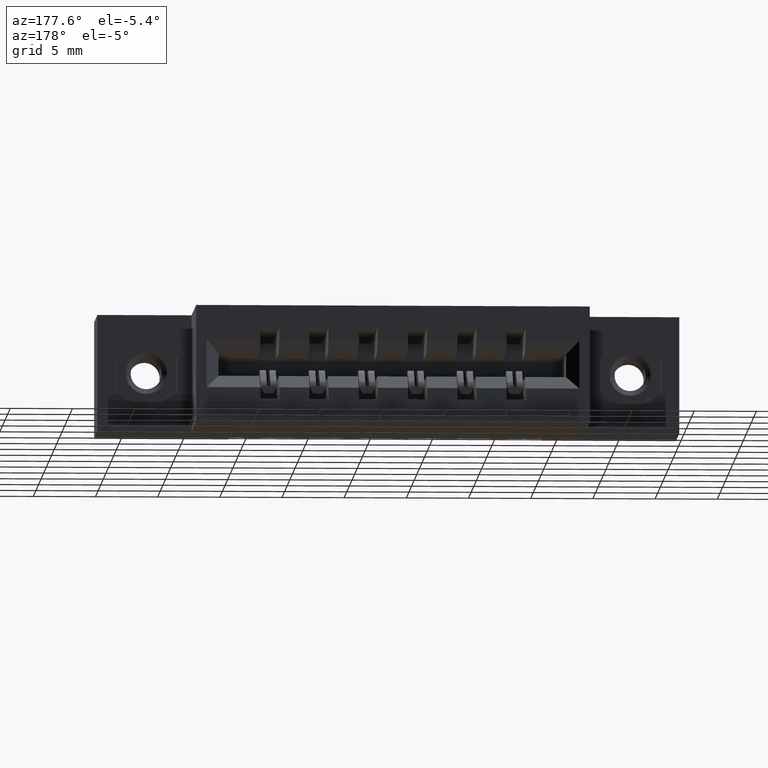
[diagram: clean part render]
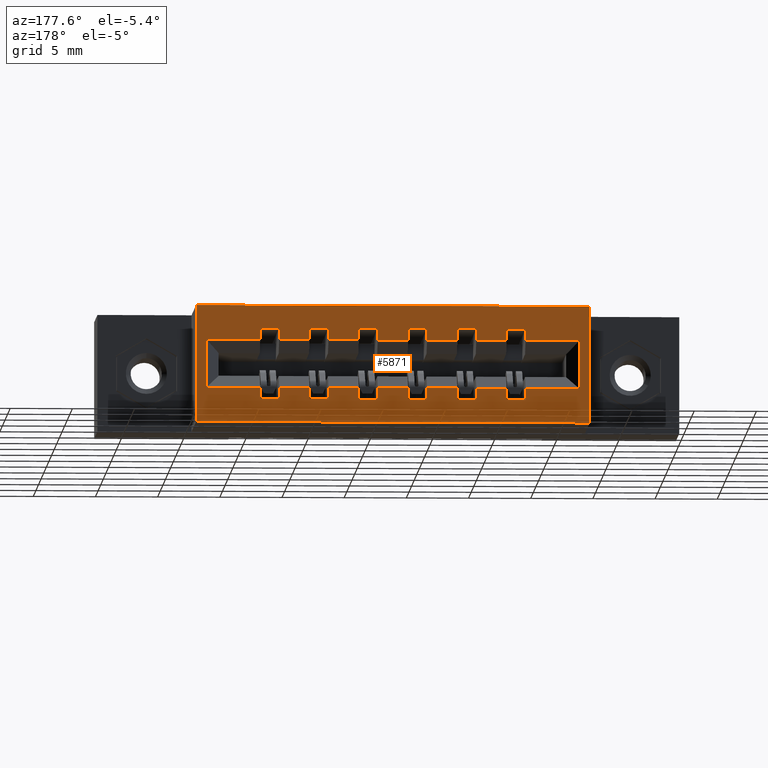
[diagram: same view with one face highlighted and labeled with its STEP entity id]
A machine part, auxiliary view. The second image highlights one B-rep face of the part: STEP entity #5871.
In plain terms, the highlighted planar face has unit normal (0, -1, 0).
Its self-contained STEP definition (entity closure, byte-faithful):
#14 = CARTESIAN_POINT ( 'NONE',  ( 1.340999999999999700, 0.5999999999999999800, -0.1090000000000002200 ) ) ;
#71 = VECTOR ( 'NONE', #1146, 39.37007874015748100 ) ;
#122 = CARTESIAN_POINT ( 'NONE',  ( 1.184999999999999800, 0.5999999999999999800, -0.2610000000000000100 ) ) ;
#189 = VERTEX_POINT ( 'NONE', #6931 ) ;
#201 = LINE ( 'NONE', #5653, #5351 ) ;
#210 = CARTESIAN_POINT ( 'NONE',  ( 0.6570000000000000300, 0.5999999999999999800, -0.2610000000000000100 ) ) ;
#220 = DIRECTION ( 'NONE',  ( 1.000000000000000000, -0.0000000000000000000, -0.0000000000000000000 ) ) ;
#274 = EDGE_CURVE ( 'NONE', #6883, #5917, #1651, .T. ) ;
#275 = LINE ( 'NONE', #2967, #1007 ) ;
#353 = CARTESIAN_POINT ( 'NONE',  ( 0.5010000000000001100, 0.5999999999999999800, -0.2974999999999999900 ) ) ;
#374 = CARTESIAN_POINT ( 'NONE',  ( 0.5010000000000001100, 0.5999999999999999800, -0.1090000000000001900 ) ) ;
#381 = ORIENTED_EDGE ( 'NONE', *, *, #2538, .T. ) ;
#384 = ORIENTED_EDGE ( 'NONE', *, *, #8340, .T. ) ;
#408 = LINE ( 'NONE', #3620, #6888 ) ;
#411 = ORIENTED_EDGE ( 'NONE', *, *, #9014, .F. ) ;
#483 = LINE ( 'NONE', #1380, #8507 ) ;
#497 = CARTESIAN_POINT ( 'NONE',  ( 0.8129999999999999400, 0.5999999999999999800, -0.2610000000000000100 ) ) ;
#526 = VECTOR ( 'NONE', #4606, 39.37007874015748100 ) ;
#551 = VERTEX_POINT ( 'NONE', #1178 ) ;
#593 = CARTESIAN_POINT ( 'NONE',  ( 0.9689999999999998600, 0.5999999999999999800, -0.2974999999999999900 ) ) ;
#616 = CARTESIAN_POINT ( 'NONE',  ( 0.9689999999999998600, 0.5999999999999999800, -0.2974999999999999900 ) ) ;
#651 = DIRECTION ( 'NONE',  ( 0.0000000000000000000, 0.0000000000000000000, 1.000000000000000000 ) ) ;
#680 = DIRECTION ( 'NONE',  ( 1.000000000000000000, -0.0000000000000000000, -0.0000000000000000000 ) ) ;
#717 = CARTESIAN_POINT ( 'NONE',  ( 0.5610000000000000500, 0.5999999999999999800, -0.2974999999999999900 ) ) ;
#769 = EDGE_CURVE ( 'NONE', #2904, #2438, #8815, .T. ) ;
#780 = ORIENTED_EDGE ( 'NONE', *, *, #836, .F. ) ;
#782 = CARTESIAN_POINT ( 'NONE',  ( 0.5010000000000001100, 0.5999999999999999800, -0.2974999999999999900 ) ) ;
#799 = ORIENTED_EDGE ( 'NONE', *, *, #274, .F. ) ;
#836 = EDGE_CURVE ( 'NONE', #5061, #8609, #6151, .T. ) ;
#839 = VECTOR ( 'NONE', #680, 39.37007874015748100 ) ;
#873 = DIRECTION ( 'NONE',  ( 0.0000000000000000000, 0.0000000000000000000, 1.000000000000000000 ) ) ;
#878 = VECTOR ( 'NONE', #7741, 39.37007874015748100 ) ;
#920 = CARTESIAN_POINT ( 'NONE',  ( 0.5610000000000000500, 0.5999999999999999800, -0.2610000000000000100 ) ) ;
#929 = LINE ( 'NONE', #3494, #71 ) ;
#934 = CARTESIAN_POINT ( 'NONE',  ( 1.280999999999999700, 0.5999999999999999800, -0.2974999999999999300 ) ) ;
#952 = AXIS2_PLACEMENT_3D ( 'NONE', #3796, #9204, #1485 ) ;
#979 = VERTEX_POINT ( 'NONE', #920 ) ;
#980 = LINE ( 'NONE', #6339, #1101 ) ;
#997 = CARTESIAN_POINT ( 'NONE',  ( 1.184999999999999800, 0.5999999999999999800, -0.07249999999999996700 ) ) ;
#1007 = VECTOR ( 'NONE', #5310, 39.37007874015748100 ) ;
#1052 = VECTOR ( 'NONE', #7113, 39.37007874015748100 ) ;
#1056 = LINE ( 'NONE', #3414, #6810 ) ;
#1073 = DIRECTION ( 'NONE',  ( 0.0000000000000000000, 0.0000000000000000000, 1.000000000000000000 ) ) ;
#1074 = DIRECTION ( 'NONE',  ( 1.000000000000000000, -0.0000000000000000000, -0.0000000000000000000 ) ) ;
#1081 = VERTEX_POINT ( 'NONE', #8793 ) ;
#1087 = DIRECTION ( 'NONE',  ( 0.0000000000000000000, 0.0000000000000000000, 1.000000000000000000 ) ) ;
#1101 = VECTOR ( 'NONE', #8889, 39.37007874015748100 ) ;
#1103 = DIRECTION ( 'NONE',  ( 1.000000000000000000, -0.0000000000000000000, -0.0000000000000000000 ) ) ;
#1112 = VECTOR ( 'NONE', #6038, 39.37007874015748100 ) ;
#1146 = DIRECTION ( 'NONE',  ( 0.0000000000000000000, 0.0000000000000000000, -1.000000000000000000 ) ) ;
#1171 = ORIENTED_EDGE ( 'NONE', *, *, #8620, .T. ) ;
#1175 = EDGE_CURVE ( 'NONE', #10126, #189, #7831, .T. ) ;
#1178 = CARTESIAN_POINT ( 'NONE',  ( 1.340999999999999700, 0.5999999999999999800, -0.2609999999999999500 ) ) ;
#1252 = EDGE_CURVE ( 'NONE', #3669, #9787, #1371, .T. ) ;
#1269 = FACE_OUTER_BOUND ( 'NONE', #2659, .T. ) ;
#1301 = CARTESIAN_POINT ( 'NONE',  ( 0.0000000000000000000, 0.5999999999999999800, -0.1090000000000002200 ) ) ;
#1339 = CARTESIAN_POINT ( 'NONE',  ( 0.7170000000000000800, 0.5999999999999999800, -0.07250000000000000900 ) ) ;
#1350 = CARTESIAN_POINT ( 'NONE',  ( 0.8129999999999999400, 0.5999999999999999800, -0.2974999999999999900 ) ) ;
#1360 = ORIENTED_EDGE ( 'NONE', *, *, #1373, .T. ) ;
#1371 = LINE ( 'NONE', #6701, #7364 ) ;
#1373 = EDGE_CURVE ( 'NONE', #8005, #9434, #6769, .T. ) ;
#1380 = CARTESIAN_POINT ( 'NONE',  ( 0.0000000000000000000, 0.5999999999999999800, -0.2609999999999999500 ) ) ;
#1412 = DIRECTION ( 'NONE',  ( 1.000000000000000000, -0.0000000000000000000, -0.0000000000000000000 ) ) ;
#1420 = VECTOR ( 'NONE', #4948, 39.37007874015748100 ) ;
#1439 = LINE ( 'NONE', #934, #8368 ) ;
#1455 = VERTEX_POINT ( 'NONE', #10064 ) ;
#1457 = CARTESIAN_POINT ( 'NONE',  ( 0.0000000000000000000, 0.5999999999999999800, -0.2609999999999999500 ) ) ;
#1470 = VECTOR ( 'NONE', #2542, 39.37007874015748100 ) ;
#1485 = DIRECTION ( 'NONE',  ( 0.0000000000000000000, -0.0000000000000000000, -1.000000000000000000 ) ) ;
#1514 = LINE ( 'NONE', #6051, #9534 ) ;
#1546 = CARTESIAN_POINT ( 'NONE',  ( 0.5610000000000000500, 0.5999999999999999800, -0.1090000000000002200 ) ) ;
#1552 = CARTESIAN_POINT ( 'NONE',  ( 1.280999999999999700, 0.5999999999999999800, -0.2974999999999999300 ) ) ;
#1560 = DIRECTION ( 'NONE',  ( 0.0000000000000000000, 0.0000000000000000000, 1.000000000000000000 ) ) ;
#1574 = LINE ( 'NONE', #2140, #4387 ) ;
#1576 = ORIENTED_EDGE ( 'NONE', *, *, #10080, .F. ) ;
#1651 = LINE ( 'NONE', #4628, #10051 ) ;
#1699 = VECTOR ( 'NONE', #5509, 39.37007874015748100 ) ;
#1704 = LINE ( 'NONE', #10020, #5599 ) ;
#1712 = CARTESIAN_POINT ( 'NONE',  ( 0.0000000000000000000, 0.5999999999999999800, -0.2609999999999999500 ) ) ;
#1718 = VERTEX_POINT ( 'NONE', #8782 ) ;
#1767 = VERTEX_POINT ( 'NONE', #374 ) ;
#1779 = FACE_BOUND ( 'NONE', #3420, .T. ) ;
#1877 = CARTESIAN_POINT ( 'NONE',  ( 0.6570000000000000300, 0.5999999999999999800, -0.2974999999999999900 ) ) ;
#1961 = VECTOR ( 'NONE', #10043, 39.37007874015748100 ) ;
#1969 = DIRECTION ( 'NONE',  ( 0.0000000000000000000, 0.0000000000000000000, 1.000000000000000000 ) ) ;
#2015 = LINE ( 'NONE', #8908, #5643 ) ;
#2064 = CARTESIAN_POINT ( 'NONE',  ( 1.280999999999999700, 0.5999999999999999800, -0.2974999999999999300 ) ) ;
#2087 = VERTEX_POINT ( 'NONE', #2860 ) ;
#2107 = LINE ( 'NONE', #6496, #4056 ) ;
#2111 = VECTOR ( 'NONE', #8222, 39.37007874015748100 ) ;
#2140 = CARTESIAN_POINT ( 'NONE',  ( 0.5010000000000001100, 0.5999999999999999800, -0.2974999999999999900 ) ) ;
#2161 = DIRECTION ( 'NONE',  ( -1.000000000000000000, 0.0000000000000000000, 0.0000000000000000000 ) ) ;
#2168 = CARTESIAN_POINT ( 'NONE',  ( 0.7170000000000000800, 0.5999999999999999800, -0.2974999999999999900 ) ) ;
#2169 = EDGE_CURVE ( 'NONE', #5026, #5074, #9765, .T. ) ;
#2210 = DIRECTION ( 'NONE',  ( 1.000000000000000000, -0.0000000000000000000, -0.0000000000000000000 ) ) ;
#2213 = EDGE_CURVE ( 'NONE', #6478, #4071, #3216, .T. ) ;
#2236 = ORIENTED_EDGE ( 'NONE', *, *, #769, .T. ) ;
#2362 = CARTESIAN_POINT ( 'NONE',  ( 1.028999999999999900, 0.5999999999999999800, -0.2974999999999999900 ) ) ;
#2367 = VECTOR ( 'NONE', #6242, 39.37007874015748100 ) ;
#2373 = EDGE_CURVE ( 'NONE', #1718, #4922, #6499, .T. ) ;
#2438 = VERTEX_POINT ( 'NONE', #5392 ) ;
#2479 = LINE ( 'NONE', #1301, #7322 ) ;
#2503 = VECTOR ( 'NONE', #1969, 39.37007874015748100 ) ;
#2515 = CARTESIAN_POINT ( 'NONE',  ( 1.544000000000000700, 0.5999999999999999800, -0.3699999999999999400 ) ) ;
#2538 = EDGE_CURVE ( 'NONE', #2662, #3681, #980, .T. ) ;
#2542 = DIRECTION ( 'NONE',  ( 0.0000000000000000000, 0.0000000000000000000, 1.000000000000000000 ) ) ;
#2561 = CARTESIAN_POINT ( 'NONE',  ( 1.028999999999999900, 0.5999999999999999800, -0.1090000000000002200 ) ) ;
#2576 = DIRECTION ( 'NONE',  ( 1.000000000000000000, 0.0000000000000000000, 0.0000000000000000000 ) ) ;
#2581 = VERTEX_POINT ( 'NONE', #210 ) ;
#2602 = VECTOR ( 'NONE', #6291, 39.37007874015748100 ) ;
#2621 = ORIENTED_EDGE ( 'NONE', *, *, #4351, .F. ) ;
#2659 = EDGE_LOOP ( 'NONE', ( #7393, #3636, #2779, #5658 ) ) ;
#2662 = VERTEX_POINT ( 'NONE', #4898 ) ;
#2665 = CARTESIAN_POINT ( 'NONE',  ( 0.0000000000000000000, 0.5999999999999999800, -0.1090000000000002200 ) ) ;
#2697 = CARTESIAN_POINT ( 'NONE',  ( 0.6570000000000000300, 0.5999999999999999800, -0.1090000000000001900 ) ) ;
#2709 = EDGE_CURVE ( 'NONE', #8005, #3819, #4763, .T. ) ;
#2733 = ORIENTED_EDGE ( 'NONE', *, *, #3907, .F. ) ;
#2779 = ORIENTED_EDGE ( 'NONE', *, *, #7225, .T. ) ;
#2820 = LINE ( 'NONE', #8565, #3906 ) ;
#2832 = LINE ( 'NONE', #1552, #9374 ) ;
#2860 = CARTESIAN_POINT ( 'NONE',  ( 0.7170000000000000800, 0.5999999999999999800, -0.1090000000000002200 ) ) ;
#2902 = VERTEX_POINT ( 'NONE', #8476 ) ;
#2904 = VERTEX_POINT ( 'NONE', #3866 ) ;
#2935 = CARTESIAN_POINT ( 'NONE',  ( 0.5010000000000001100, 0.5999999999999999800, -0.2974999999999999900 ) ) ;
#2958 = CARTESIAN_POINT ( 'NONE',  ( 0.2980000000000001000, 0.5999999999999999800, -0.3700000000000001600 ) ) ;
#2967 = CARTESIAN_POINT ( 'NONE',  ( 0.0000000000000000000, 0.5999999999999999800, -0.1090000000000002200 ) ) ;
#2983 = EDGE_CURVE ( 'NONE', #2438, #9798, #8515, .T. ) ;
#3054 = ORIENTED_EDGE ( 'NONE', *, *, #8572, .T. ) ;
#3111 = VECTOR ( 'NONE', #1560, 39.37007874015748100 ) ;
#3140 = ORIENTED_EDGE ( 'NONE', *, *, #8952, .T. ) ;
#3168 = VERTEX_POINT ( 'NONE', #8751 ) ;
#3216 = LINE ( 'NONE', #4474, #1112 ) ;
#3233 = ORIENTED_EDGE ( 'NONE', *, *, #4609, .T. ) ;
#3239 = VERTEX_POINT ( 'NONE', #2697 ) ;
#3259 = CARTESIAN_POINT ( 'NONE',  ( 0.3310000000000001800, 0.5999999999999999800, -0.1090000000000002200 ) ) ;
#3317 = EDGE_CURVE ( 'NONE', #6172, #2902, #4163, .T. ) ;
#3319 = CARTESIAN_POINT ( 'NONE',  ( 0.5010000000000001100, 0.5999999999999999800, -0.07250000000000000900 ) ) ;
#3333 = CARTESIAN_POINT ( 'NONE',  ( 1.544000000000000700, 0.5999999999999999800, 0.0000000000000000000 ) ) ;
#3334 = LINE ( 'NONE', #5454, #2367 ) ;
#3392 = ORIENTED_EDGE ( 'NONE', *, *, #7772, .F. ) ;
#3398 = DIRECTION ( 'NONE',  ( 1.000000000000000000, 0.0000000000000000000, 0.0000000000000000000 ) ) ;
#3414 = CARTESIAN_POINT ( 'NONE',  ( 1.280999999999999700, 0.5999999999999999800, -0.07249999999999995300 ) ) ;
#3420 = EDGE_LOOP ( 'NONE', ( #5623, #3233, #4994, #7611, #1171, #7907, #9264, #1576, #411, #4973, #7097, #2621, #799, #4222, #7663, #8332, #2733, #8278, #381, #6246, #6042, #3054, #8451, #10072, #4669, #384, #3874, #7343, #7305, #8502, #8607, #4095, #6430, #1360, #9066, #3140, #3392, #5776, #4852, #9284, #4817, #2236, #3588, #3948, #8200, #8377, #4053, #8558, #780, #6767, #8043, #7792 ) ) ;
#3452 = EDGE_CURVE ( 'NONE', #2902, #1718, #9496, .T. ) ;
#3494 = CARTESIAN_POINT ( 'NONE',  ( 0.2980000000000001000, 0.5999999999999999800, 0.0000000000000000000 ) ) ;
#3526 = VERTEX_POINT ( 'NONE', #3867 ) ;
#3528 = EDGE_CURVE ( 'NONE', #551, #8405, #483, .T. ) ;
#3572 = LINE ( 'NONE', #2665, #3698 ) ;
#3574 = DIRECTION ( 'NONE',  ( -1.000000000000000000, -0.0000000000000000000, -7.415439722215695600E-017 ) ) ;
#3578 = VERTEX_POINT ( 'NONE', #7712 ) ;
#3588 = ORIENTED_EDGE ( 'NONE', *, *, #2983, .T. ) ;
#3620 = CARTESIAN_POINT ( 'NONE',  ( 0.9689999999999998600, 0.5999999999999999800, -0.2974999999999999900 ) ) ;
#3636 = ORIENTED_EDGE ( 'NONE', *, *, #8982, .F. ) ;
#3669 = VERTEX_POINT ( 'NONE', #7748 ) ;
#3681 = VERTEX_POINT ( 'NONE', #10099 ) ;
#3698 = VECTOR ( 'NONE', #8847, 39.37007874015748100 ) ;
#3724 = VERTEX_POINT ( 'NONE', #2561 ) ;
#3741 = DIRECTION ( 'NONE',  ( 1.000000000000000000, 0.0000000000000000000, 0.0000000000000000000 ) ) ;
#3764 = PLANE ( 'NONE',  #952 ) ;
#3781 = VECTOR ( 'NONE', #220, 39.37007874015748100 ) ;
#3796 = CARTESIAN_POINT ( 'NONE',  ( 0.0000000000000000000, 0.5999999999999999800, -0.3700000000000001600 ) ) ;
#3819 = VERTEX_POINT ( 'NONE', #7947 ) ;
#3835 = CARTESIAN_POINT ( 'NONE',  ( 0.9689999999999998600, 0.5999999999999999800, -0.2974999999999999900 ) ) ;
#3857 = CARTESIAN_POINT ( 'NONE',  ( 1.124999999999999800, 0.5999999999999999800, -0.2974999999999999900 ) ) ;
#3866 = CARTESIAN_POINT ( 'NONE',  ( 0.8129999999999999400, 0.5999999999999999800, -0.2974999999999999900 ) ) ;
#3867 = CARTESIAN_POINT ( 'NONE',  ( 1.028999999999999900, 0.5999999999999999800, -0.07249999999999998100 ) ) ;
#3874 = ORIENTED_EDGE ( 'NONE', *, *, #9642, .T. ) ;
#3884 = CARTESIAN_POINT ( 'NONE',  ( 0.8730000000000000000, 0.5999999999999999800, -0.2610000000000000100 ) ) ;
#3906 = VECTOR ( 'NONE', #6285, 39.37007874015748100 ) ;
#3907 = EDGE_CURVE ( 'NONE', #8496, #9675, #4875, .T. ) ;
#3948 = ORIENTED_EDGE ( 'NONE', *, *, #8045, .T. ) ;
#3959 = VECTOR ( 'NONE', #7151, 39.37007874015748100 ) ;
#4049 = CARTESIAN_POINT ( 'NONE',  ( 0.0000000000000000000, 0.5999999999999999800, -0.1090000000000002200 ) ) ;
#4053 = ORIENTED_EDGE ( 'NONE', *, *, #4993, .T. ) ;
#4056 = VECTOR ( 'NONE', #3398, 39.37007874015748100 ) ;
#4071 = VERTEX_POINT ( 'NONE', #5567 ) ;
#4095 = ORIENTED_EDGE ( 'NONE', *, *, #5597, .T. ) ;
#4100 = VERTEX_POINT ( 'NONE', #9669 ) ;
#4131 = VECTOR ( 'NONE', #2576, 39.37007874015748100 ) ;
#4133 = EDGE_CURVE ( 'NONE', #8188, #3578, #9118, .T. ) ;
#4163 = LINE ( 'NONE', #4991, #839 ) ;
#4198 = CARTESIAN_POINT ( 'NONE',  ( 0.8129999999999999400, 0.5999999999999999800, -0.1090000000000001500 ) ) ;
#4218 = CARTESIAN_POINT ( 'NONE',  ( 0.8129999999999999400, 0.5999999999999999800, -0.2974999999999999900 ) ) ;
#4222 = ORIENTED_EDGE ( 'NONE', *, *, #4490, .T. ) ;
#4245 = VERTEX_POINT ( 'NONE', #2958 ) ;
#4259 = EDGE_CURVE ( 'NONE', #9787, #4100, #5952, .T. ) ;
#4280 = VECTOR ( 'NONE', #5474, 39.37007874015748100 ) ;
#4311 = DIRECTION ( 'NONE',  ( 0.0000000000000000000, 0.0000000000000000000, 1.000000000000000000 ) ) ;
#4351 = EDGE_CURVE ( 'NONE', #5917, #8704, #1704, .T. ) ;
#4371 = CARTESIAN_POINT ( 'NONE',  ( 0.5610000000000000500, 0.5999999999999999800, -0.07250000000000000900 ) ) ;
#4383 = DIRECTION ( 'NONE',  ( 0.0000000000000000000, 0.0000000000000000000, 1.000000000000000000 ) ) ;
#4387 = VECTOR ( 'NONE', #8423, 39.37007874015748100 ) ;
#4389 = VECTOR ( 'NONE', #6532, 39.37007874015748100 ) ;
#4415 = LINE ( 'NONE', #5743, #2111 ) ;
#4464 = EDGE_CURVE ( 'NONE', #7241, #6554, #2820, .T. ) ;
#4474 = CARTESIAN_POINT ( 'NONE',  ( 0.0000000000000000000, 0.5999999999999999800, -0.1090000000000002200 ) ) ;
#4490 = EDGE_CURVE ( 'NONE', #6883, #3724, #5112, .T. ) ;
#4552 = DIRECTION ( 'NONE',  ( 1.000000000000000000, 0.0000000000000000000, 0.0000000000000000000 ) ) ;
#4606 = DIRECTION ( 'NONE',  ( 1.000000000000000000, -0.0000000000000000000, -0.0000000000000000000 ) ) ;
#4609 = EDGE_CURVE ( 'NONE', #8349, #8168, #1439, .T. ) ;
#4625 = EDGE_CURVE ( 'NONE', #9675, #3526, #7894, .T. ) ;
#4628 = CARTESIAN_POINT ( 'NONE',  ( 1.124999999999999800, 0.5999999999999999800, -0.2974999999999999900 ) ) ;
#4640 = CARTESIAN_POINT ( 'NONE',  ( 0.8730000000000000000, 0.5999999999999999800, -0.2974999999999999900 ) ) ;
#4669 = ORIENTED_EDGE ( 'NONE', *, *, #10053, .F. ) ;
#4699 = VERTEX_POINT ( 'NONE', #3319 ) ;
#4763 = LINE ( 'NONE', #353, #9629 ) ;
#4786 = CARTESIAN_POINT ( 'NONE',  ( 0.9689999999999998600, 0.5999999999999999800, -0.07249999999999998100 ) ) ;
#4789 = EDGE_CURVE ( 'NONE', #5026, #4245, #929, .T. ) ;
#4805 = VECTOR ( 'NONE', #651, 39.37007874015748100 ) ;
#4817 = ORIENTED_EDGE ( 'NONE', *, *, #5165, .F. ) ;
#4852 = ORIENTED_EDGE ( 'NONE', *, *, #3452, .T. ) ;
#4875 = LINE ( 'NONE', #3835, #1961 ) ;
#4898 = CARTESIAN_POINT ( 'NONE',  ( 0.8730000000000000000, 0.5999999999999999800, -0.1090000000000002200 ) ) ;
#4922 = VERTEX_POINT ( 'NONE', #497 ) ;
#4948 = DIRECTION ( 'NONE',  ( 1.000000000000000000, 0.0000000000000000000, 0.0000000000000000000 ) ) ;
#4973 = ORIENTED_EDGE ( 'NONE', *, *, #2213, .T. ) ;
#4991 = CARTESIAN_POINT ( 'NONE',  ( 0.6570000000000000300, 0.5999999999999999800, -0.2974999999999999900 ) ) ;
#4993 = EDGE_CURVE ( 'NONE', #6832, #1081, #8601, .T. ) ;
#4994 = ORIENTED_EDGE ( 'NONE', *, *, #6732, .T. ) ;
#5005 = EDGE_CURVE ( 'NONE', #1455, #6869, #5814, .T. ) ;
#5026 = VERTEX_POINT ( 'NONE', #5544 ) ;
#5061 = VERTEX_POINT ( 'NONE', #9341 ) ;
#5074 = VERTEX_POINT ( 'NONE', #6334 ) ;
#5083 = DIRECTION ( 'NONE',  ( 0.0000000000000000000, 0.0000000000000000000, 1.000000000000000000 ) ) ;
#5112 = LINE ( 'NONE', #4049, #6213 ) ;
#5123 = CARTESIAN_POINT ( 'NONE',  ( 1.511000000000000600, 0.5999999999999999800, -0.3700000000000001600 ) ) ;
#5156 = CARTESIAN_POINT ( 'NONE',  ( 1.184999999999999800, 0.5999999999999999800, -0.2974999999999999900 ) ) ;
#5165 = EDGE_CURVE ( 'NONE', #2904, #4922, #8122, .T. ) ;
#5168 = LINE ( 'NONE', #7770, #878 ) ;
#5191 = VECTOR ( 'NONE', #9269, 39.37007874015748100 ) ;
#5310 = DIRECTION ( 'NONE',  ( -1.000000000000000000, 0.0000000000000000000, 0.0000000000000000000 ) ) ;
#5343 = CARTESIAN_POINT ( 'NONE',  ( 1.280999999999999700, 0.5999999999999999800, -0.2974999999999999300 ) ) ;
#5351 = VECTOR ( 'NONE', #1073, 39.37007874015748100 ) ;
#5360 = LINE ( 'NONE', #6700, #1699 ) ;
#5388 = LINE ( 'NONE', #5123, #1470 ) ;
#5392 = CARTESIAN_POINT ( 'NONE',  ( 0.8730000000000000000, 0.5999999999999999800, -0.2974999999999999900 ) ) ;
#5445 = EDGE_CURVE ( 'NONE', #6554, #7361, #6438, .T. ) ;
#5454 = CARTESIAN_POINT ( 'NONE',  ( 0.8129999999999999400, 0.5999999999999999800, -0.07249999999999998100 ) ) ;
#5474 = DIRECTION ( 'NONE',  ( 0.0000000000000000000, 0.0000000000000000000, 1.000000000000000000 ) ) ;
#5482 = VERTEX_POINT ( 'NONE', #2515 ) ;
#5504 = DIRECTION ( 'NONE',  ( 0.0000000000000000000, 0.0000000000000000000, 1.000000000000000000 ) ) ;
#5508 = DIRECTION ( 'NONE',  ( 0.0000000000000000000, 0.0000000000000000000, 1.000000000000000000 ) ) ;
#5509 = DIRECTION ( 'NONE',  ( 0.0000000000000000000, 0.0000000000000000000, 1.000000000000000000 ) ) ;
#5520 = DIRECTION ( 'NONE',  ( 0.0000000000000000000, 0.0000000000000000000, 1.000000000000000000 ) ) ;
#5544 = CARTESIAN_POINT ( 'NONE',  ( 0.2980000000000001000, 0.5999999999999999800, 0.0000000000000000000 ) ) ;
#5567 = CARTESIAN_POINT ( 'NONE',  ( 1.184999999999999800, 0.5999999999999999800, -0.1090000000000002200 ) ) ;
#5568 = LINE ( 'NONE', #8054, #1420 ) ;
#5596 = LINE ( 'NONE', #717, #6822 ) ;
#5597 = EDGE_CURVE ( 'NONE', #3578, #3819, #5568, .T. ) ;
#5599 = VECTOR ( 'NONE', #8522, 39.37007874015748100 ) ;
#5623 = ORIENTED_EDGE ( 'NONE', *, *, #6359, .F. ) ;
#5643 = VECTOR ( 'NONE', #7291, 39.37007874015748100 ) ;
#5653 = CARTESIAN_POINT ( 'NONE',  ( 0.6570000000000000300, 0.5999999999999999800, -0.2974999999999999900 ) ) ;
#5658 = ORIENTED_EDGE ( 'NONE', *, *, #4789, .F. ) ;
#5732 = CARTESIAN_POINT ( 'NONE',  ( 0.5610000000000000500, 0.5999999999999999800, -0.2974999999999999900 ) ) ;
#5743 = CARTESIAN_POINT ( 'NONE',  ( 0.0000000000000000000, 0.5999999999999999800, -0.1090000000000002200 ) ) ;
#5764 = VECTOR ( 'NONE', #4311, 39.37007874015748100 ) ;
#5776 = ORIENTED_EDGE ( 'NONE', *, *, #3317, .T. ) ;
#5814 = LINE ( 'NONE', #7083, #1052 ) ;
#5852 = VECTOR ( 'NONE', #8246, 39.37007874015748100 ) ;
#5871 = ADVANCED_FACE ( 'NONE', ( #1269, #1779 ), #3764, .F. ) ;
#5892 = LINE ( 'NONE', #8163, #2503 ) ;
#5917 = VERTEX_POINT ( 'NONE', #9935 ) ;
#5952 = LINE ( 'NONE', #8272, #9983 ) ;
#5967 = EDGE_CURVE ( 'NONE', #8463, #6832, #7246, .T. ) ;
#6038 = DIRECTION ( 'NONE',  ( -1.000000000000000000, 0.0000000000000000000, 0.0000000000000000000 ) ) ;
#6042 = ORIENTED_EDGE ( 'NONE', *, *, #1175, .F. ) ;
#6051 = CARTESIAN_POINT ( 'NONE',  ( 0.0000000000000000000, 0.5999999999999999800, -0.2609999999999999500 ) ) ;
#6055 = CARTESIAN_POINT ( 'NONE',  ( 1.124999999999999800, 0.5999999999999999800, -0.1090000000000001500 ) ) ;
#6131 = LINE ( 'NONE', #9329, #2602 ) ;
#6151 = LINE ( 'NONE', #6920, #3111 ) ;
#6172 = VERTEX_POINT ( 'NONE', #1877 ) ;
#6205 = EDGE_CURVE ( 'NONE', #8463, #6771, #408, .T. ) ;
#6213 = VECTOR ( 'NONE', #7126, 39.37007874015748100 ) ;
#6242 = DIRECTION ( 'NONE',  ( 1.000000000000000000, -0.0000000000000000000, -0.0000000000000000000 ) ) ;
#6246 = ORIENTED_EDGE ( 'NONE', *, *, #7668, .F. ) ;
#6277 = LINE ( 'NONE', #5343, #4805 ) ;
#6285 = DIRECTION ( 'NONE',  ( 0.0000000000000000000, 0.0000000000000000000, 1.000000000000000000 ) ) ;
#6291 = DIRECTION ( 'NONE',  ( 1.000000000000000000, 0.0000000000000000000, 0.0000000000000000000 ) ) ;
#6318 = VECTOR ( 'NONE', #5508, 39.37007874015748100 ) ;
#6334 = CARTESIAN_POINT ( 'NONE',  ( 1.544000000000000700, 0.5999999999999999800, 0.0000000000000000000 ) ) ;
#6335 = EDGE_CURVE ( 'NONE', #1081, #8609, #1514, .T. ) ;
#6339 = CARTESIAN_POINT ( 'NONE',  ( 0.8730000000000000000, 0.5999999999999999800, -0.2974999999999999900 ) ) ;
#6341 = EDGE_CURVE ( 'NONE', #1767, #8188, #275, .T. ) ;
#6359 = EDGE_CURVE ( 'NONE', #8349, #7361, #6277, .T. ) ;
#6386 = EDGE_CURVE ( 'NONE', #5061, #7241, #6763, .T. ) ;
#6430 = ORIENTED_EDGE ( 'NONE', *, *, #2709, .F. ) ;
#6438 = LINE ( 'NONE', #1712, #4131 ) ;
#6478 = VERTEX_POINT ( 'NONE', #9436 ) ;
#6496 = CARTESIAN_POINT ( 'NONE',  ( 0.0000000000000000000, 0.5999999999999999800, -0.2609999999999999500 ) ) ;
#6499 = LINE ( 'NONE', #1457, #3959 ) ;
#6522 = VERTEX_POINT ( 'NONE', #1546 ) ;
#6523 = EDGE_CURVE ( 'NONE', #4699, #7654, #5168, .T. ) ;
#6532 = DIRECTION ( 'NONE',  ( 0.0000000000000000000, 0.0000000000000000000, -1.000000000000000000 ) ) ;
#6554 = VERTEX_POINT ( 'NONE', #122 ) ;
#6615 = CARTESIAN_POINT ( 'NONE',  ( 0.9689999999999998600, 0.5999999999999999800, -0.2610000000000000100 ) ) ;
#6689 = VECTOR ( 'NONE', #7556, 39.37007874015748100 ) ;
#6700 = CARTESIAN_POINT ( 'NONE',  ( 0.7170000000000000800, 0.5999999999999999800, -0.2974999999999999900 ) ) ;
#6701 = CARTESIAN_POINT ( 'NONE',  ( 0.0000000000000000000, 0.5999999999999999800, -0.1090000000000002200 ) ) ;
#6732 = EDGE_CURVE ( 'NONE', #8168, #551, #5892, .T. ) ;
#6743 = LINE ( 'NONE', #9358, #9396 ) ;
#6745 = EDGE_CURVE ( 'NONE', #3724, #3526, #2015, .T. ) ;
#6763 = LINE ( 'NONE', #3857, #526 ) ;
#6767 = ORIENTED_EDGE ( 'NONE', *, *, #6386, .T. ) ;
#6769 = LINE ( 'NONE', #2935, #9407 ) ;
#6771 = VERTEX_POINT ( 'NONE', #6615 ) ;
#6810 = VECTOR ( 'NONE', #1103, 39.37007874015748100 ) ;
#6822 = VECTOR ( 'NONE', #873, 39.37007874015748100 ) ;
#6832 = VERTEX_POINT ( 'NONE', #8314 ) ;
#6869 = VERTEX_POINT ( 'NONE', #1339 ) ;
#6883 = VERTEX_POINT ( 'NONE', #6055 ) ;
#6888 = VECTOR ( 'NONE', #4383, 39.37007874015748100 ) ;
#6920 = CARTESIAN_POINT ( 'NONE',  ( 1.124999999999999800, 0.5999999999999999800, -0.2974999999999999900 ) ) ;
#6931 = CARTESIAN_POINT ( 'NONE',  ( 0.8129999999999999400, 0.5999999999999999800, -0.07249999999999998100 ) ) ;
#6945 = VECTOR ( 'NONE', #5083, 39.37007874015748100 ) ;
#7083 = CARTESIAN_POINT ( 'NONE',  ( 0.6570000000000000300, 0.5999999999999999800, -0.07250000000000000900 ) ) ;
#7097 = ORIENTED_EDGE ( 'NONE', *, *, #9878, .T. ) ;
#7113 = DIRECTION ( 'NONE',  ( 1.000000000000000000, -0.0000000000000000000, -0.0000000000000000000 ) ) ;
#7126 = DIRECTION ( 'NONE',  ( -1.000000000000000000, 0.0000000000000000000, 0.0000000000000000000 ) ) ;
#7151 = DIRECTION ( 'NONE',  ( 1.000000000000000000, 0.0000000000000000000, 0.0000000000000000000 ) ) ;
#7221 = VECTOR ( 'NONE', #3574, 39.37007874015748100 ) ;
#7225 = EDGE_CURVE ( 'NONE', #5482, #4245, #7229, .T. ) ;
#7229 = LINE ( 'NONE', #8202, #7221 ) ;
#7241 = VERTEX_POINT ( 'NONE', #5156 ) ;
#7246 = LINE ( 'NONE', #593, #5191 ) ;
#7291 = DIRECTION ( 'NONE',  ( 0.0000000000000000000, 0.0000000000000000000, 1.000000000000000000 ) ) ;
#7305 = ORIENTED_EDGE ( 'NONE', *, *, #9392, .F. ) ;
#7322 = VECTOR ( 'NONE', #2161, 39.37007874015748100 ) ;
#7343 = ORIENTED_EDGE ( 'NONE', *, *, #6523, .F. ) ;
#7361 = VERTEX_POINT ( 'NONE', #9148 ) ;
#7364 = VECTOR ( 'NONE', #8116, 39.37007874015748100 ) ;
#7393 = ORIENTED_EDGE ( 'NONE', *, *, #2169, .T. ) ;
#7556 = DIRECTION ( 'NONE',  ( 0.0000000000000000000, 0.0000000000000000000, 1.000000000000000000 ) ) ;
#7611 = ORIENTED_EDGE ( 'NONE', *, *, #3528, .T. ) ;
#7654 = VERTEX_POINT ( 'NONE', #4371 ) ;
#7663 = ORIENTED_EDGE ( 'NONE', *, *, #6745, .T. ) ;
#7668 = EDGE_CURVE ( 'NONE', #189, #3681, #3334, .T. ) ;
#7712 = CARTESIAN_POINT ( 'NONE',  ( 0.3310000000000001800, 0.5999999999999999800, -0.2609999999999999500 ) ) ;
#7741 = DIRECTION ( 'NONE',  ( 1.000000000000000000, -0.0000000000000000000, -0.0000000000000000000 ) ) ;
#7748 = CARTESIAN_POINT ( 'NONE',  ( 1.511000000000000600, 0.5999999999999999800, -0.1090000000000002200 ) ) ;
#7764 = DIRECTION ( 'NONE',  ( 0.0000000000000000000, 0.0000000000000000000, 1.000000000000000000 ) ) ;
#7770 = CARTESIAN_POINT ( 'NONE',  ( 0.5010000000000001100, 0.5999999999999999800, -0.07250000000000000900 ) ) ;
#7772 = EDGE_CURVE ( 'NONE', #6172, #2581, #6743, .T. ) ;
#7792 = ORIENTED_EDGE ( 'NONE', *, *, #5445, .T. ) ;
#7820 = VECTOR ( 'NONE', #3741, 39.37007874015748100 ) ;
#7831 = LINE ( 'NONE', #4218, #5764 ) ;
#7894 = LINE ( 'NONE', #8773, #3781 ) ;
#7907 = ORIENTED_EDGE ( 'NONE', *, *, #1252, .T. ) ;
#7947 = CARTESIAN_POINT ( 'NONE',  ( 0.5010000000000001100, 0.5999999999999999800, -0.2610000000000000100 ) ) ;
#8005 = VERTEX_POINT ( 'NONE', #782 ) ;
#8043 = ORIENTED_EDGE ( 'NONE', *, *, #4464, .T. ) ;
#8045 = EDGE_CURVE ( 'NONE', #9798, #6771, #6131, .T. ) ;
#8054 = CARTESIAN_POINT ( 'NONE',  ( 0.0000000000000000000, 0.5999999999999999800, -0.2609999999999999500 ) ) ;
#8108 = CARTESIAN_POINT ( 'NONE',  ( 0.3310000000000001800, 0.5999999999999999800, -0.3700000000000001600 ) ) ;
#8116 = DIRECTION ( 'NONE',  ( -1.000000000000000000, 0.0000000000000000000, 0.0000000000000000000 ) ) ;
#8122 = LINE ( 'NONE', #8710, #9583 ) ;
#8163 = CARTESIAN_POINT ( 'NONE',  ( 1.340999999999999700, 0.5999999999999999800, -0.2974999999999999300 ) ) ;
#8168 = VERTEX_POINT ( 'NONE', #8268 ) ;
#8188 = VERTEX_POINT ( 'NONE', #3259 ) ;
#8200 = ORIENTED_EDGE ( 'NONE', *, *, #6205, .F. ) ;
#8202 = CARTESIAN_POINT ( 'NONE',  ( 0.0000000000000000000, 0.5999999999999999800, -0.3700000000000001600 ) ) ;
#8221 = DIRECTION ( 'NONE',  ( 0.0000000000000000000, 0.0000000000000000000, 1.000000000000000000 ) ) ;
#8222 = DIRECTION ( 'NONE',  ( -1.000000000000000000, 0.0000000000000000000, 0.0000000000000000000 ) ) ;
#8233 = CARTESIAN_POINT ( 'NONE',  ( 1.184999999999999800, 0.5999999999999999800, -0.2974999999999999900 ) ) ;
#8234 = CARTESIAN_POINT ( 'NONE',  ( 1.124999999999999800, 0.5999999999999999800, -0.2610000000000000100 ) ) ;
#8246 = DIRECTION ( 'NONE',  ( -0.0000000000000000000, -0.0000000000000000000, 1.000000000000000000 ) ) ;
#8251 = DIRECTION ( 'NONE',  ( 0.0000000000000000000, 0.0000000000000000000, 1.000000000000000000 ) ) ;
#8268 = CARTESIAN_POINT ( 'NONE',  ( 1.340999999999999700, 0.5999999999999999800, -0.2974999999999999300 ) ) ;
#8272 = CARTESIAN_POINT ( 'NONE',  ( 1.340999999999999700, 0.5999999999999999800, -0.2974999999999999300 ) ) ;
#8278 = ORIENTED_EDGE ( 'NONE', *, *, #8545, .T. ) ;
#8294 = CARTESIAN_POINT ( 'NONE',  ( 0.0000000000000000000, 0.5999999999999999800, 0.0000000000000000000 ) ) ;
#8314 = CARTESIAN_POINT ( 'NONE',  ( 1.028999999999999900, 0.5999999999999999800, -0.2974999999999999900 ) ) ;
#8332 = ORIENTED_EDGE ( 'NONE', *, *, #4625, .F. ) ;
#8340 = EDGE_CURVE ( 'NONE', #3239, #6522, #4415, .T. ) ;
#8349 = VERTEX_POINT ( 'NONE', #2064 ) ;
#8364 = DIRECTION ( 'NONE',  ( 0.0000000000000000000, 0.0000000000000000000, 1.000000000000000000 ) ) ;
#8368 = VECTOR ( 'NONE', #1074, 39.37007874015748100 ) ;
#8373 = CARTESIAN_POINT ( 'NONE',  ( 0.9689999999999998600, 0.5999999999999999800, -0.1090000000000001500 ) ) ;
#8377 = ORIENTED_EDGE ( 'NONE', *, *, #5967, .T. ) ;
#8394 = VECTOR ( 'NONE', #8221, 39.37007874015748100 ) ;
#8405 = VERTEX_POINT ( 'NONE', #9649 ) ;
#8423 = DIRECTION ( 'NONE',  ( 0.0000000000000000000, 0.0000000000000000000, 1.000000000000000000 ) ) ;
#8451 = ORIENTED_EDGE ( 'NONE', *, *, #9688, .T. ) ;
#8463 = VERTEX_POINT ( 'NONE', #616 ) ;
#8476 = CARTESIAN_POINT ( 'NONE',  ( 0.7170000000000000800, 0.5999999999999999800, -0.2974999999999999900 ) ) ;
#8496 = VERTEX_POINT ( 'NONE', #8373 ) ;
#8502 = ORIENTED_EDGE ( 'NONE', *, *, #6341, .T. ) ;
#8507 = VECTOR ( 'NONE', #4552, 39.37007874015748100 ) ;
#8515 = LINE ( 'NONE', #4640, #4280 ) ;
#8522 = DIRECTION ( 'NONE',  ( 1.000000000000000000, -0.0000000000000000000, -0.0000000000000000000 ) ) ;
#8545 = EDGE_CURVE ( 'NONE', #8496, #2662, #2479, .T. ) ;
#8558 = ORIENTED_EDGE ( 'NONE', *, *, #6335, .T. ) ;
#8565 = CARTESIAN_POINT ( 'NONE',  ( 1.184999999999999800, 0.5999999999999999800, -0.2974999999999999900 ) ) ;
#8572 = EDGE_CURVE ( 'NONE', #10126, #2087, #3572, .T. ) ;
#8601 = LINE ( 'NONE', #2362, #6318 ) ;
#8607 = ORIENTED_EDGE ( 'NONE', *, *, #4133, .T. ) ;
#8609 = VERTEX_POINT ( 'NONE', #8234 ) ;
#8620 = EDGE_CURVE ( 'NONE', #8405, #3669, #5388, .T. ) ;
#8704 = VERTEX_POINT ( 'NONE', #997 ) ;
#8710 = CARTESIAN_POINT ( 'NONE',  ( 0.8129999999999999400, 0.5999999999999999800, -0.2974999999999999900 ) ) ;
#8751 = CARTESIAN_POINT ( 'NONE',  ( 1.280999999999999700, 0.5999999999999999800, -0.07249999999999995300 ) ) ;
#8773 = CARTESIAN_POINT ( 'NONE',  ( 0.9689999999999998600, 0.5999999999999999800, -0.07249999999999998100 ) ) ;
#8782 = CARTESIAN_POINT ( 'NONE',  ( 0.7170000000000000800, 0.5999999999999999800, -0.2610000000000000100 ) ) ;
#8793 = CARTESIAN_POINT ( 'NONE',  ( 1.028999999999999900, 0.5999999999999999800, -0.2610000000000000100 ) ) ;
#8815 = LINE ( 'NONE', #1350, #9660 ) ;
#8831 = CARTESIAN_POINT ( 'NONE',  ( 0.5610000000000000500, 0.5999999999999999800, -0.2974999999999999900 ) ) ;
#8847 = DIRECTION ( 'NONE',  ( -1.000000000000000000, 0.0000000000000000000, 0.0000000000000000000 ) ) ;
#8889 = DIRECTION ( 'NONE',  ( 0.0000000000000000000, 0.0000000000000000000, 1.000000000000000000 ) ) ;
#8908 = CARTESIAN_POINT ( 'NONE',  ( 1.028999999999999900, 0.5999999999999999800, -0.2974999999999999900 ) ) ;
#8952 = EDGE_CURVE ( 'NONE', #979, #2581, #2107, .T. ) ;
#8982 = EDGE_CURVE ( 'NONE', #5482, #5074, #9133, .T. ) ;
#9014 = EDGE_CURVE ( 'NONE', #6478, #3168, #2832, .T. ) ;
#9066 = ORIENTED_EDGE ( 'NONE', *, *, #9837, .T. ) ;
#9114 = LINE ( 'NONE', #8233, #6689 ) ;
#9118 = LINE ( 'NONE', #8108, #4389 ) ;
#9133 = LINE ( 'NONE', #3333, #5852 ) ;
#9148 = CARTESIAN_POINT ( 'NONE',  ( 1.280999999999999700, 0.5999999999999999800, -0.2609999999999999500 ) ) ;
#9204 = DIRECTION ( 'NONE',  ( 0.0000000000000000000, -1.000000000000000000, 0.0000000000000000000 ) ) ;
#9264 = ORIENTED_EDGE ( 'NONE', *, *, #4259, .T. ) ;
#9269 = DIRECTION ( 'NONE',  ( 1.000000000000000000, -0.0000000000000000000, -0.0000000000000000000 ) ) ;
#9284 = ORIENTED_EDGE ( 'NONE', *, *, #2373, .T. ) ;
#9329 = CARTESIAN_POINT ( 'NONE',  ( 0.0000000000000000000, 0.5999999999999999800, -0.2609999999999999500 ) ) ;
#9341 = CARTESIAN_POINT ( 'NONE',  ( 1.124999999999999800, 0.5999999999999999800, -0.2974999999999999900 ) ) ;
#9358 = CARTESIAN_POINT ( 'NONE',  ( 0.6570000000000000300, 0.5999999999999999800, -0.2974999999999999900 ) ) ;
#9374 = VECTOR ( 'NONE', #5504, 39.37007874015748100 ) ;
#9392 = EDGE_CURVE ( 'NONE', #1767, #4699, #1574, .T. ) ;
#9396 = VECTOR ( 'NONE', #5520, 39.37007874015748100 ) ;
#9407 = VECTOR ( 'NONE', #1412, 39.37007874015748100 ) ;
#9434 = VERTEX_POINT ( 'NONE', #5732 ) ;
#9436 = CARTESIAN_POINT ( 'NONE',  ( 1.280999999999999700, 0.5999999999999999800, -0.1090000000000001500 ) ) ;
#9496 = LINE ( 'NONE', #2168, #8394 ) ;
#9534 = VECTOR ( 'NONE', #9995, 39.37007874015748100 ) ;
#9583 = VECTOR ( 'NONE', #1087, 39.37007874015748100 ) ;
#9629 = VECTOR ( 'NONE', #8251, 39.37007874015748100 ) ;
#9642 = EDGE_CURVE ( 'NONE', #6522, #7654, #9733, .T. ) ;
#9649 = CARTESIAN_POINT ( 'NONE',  ( 1.511000000000000600, 0.5999999999999999800, -0.2609999999999999500 ) ) ;
#9660 = VECTOR ( 'NONE', #2210, 39.37007874015748100 ) ;
#9669 = CARTESIAN_POINT ( 'NONE',  ( 1.340999999999999700, 0.5999999999999999800, -0.07249999999999995300 ) ) ;
#9675 = VERTEX_POINT ( 'NONE', #4786 ) ;
#9688 = EDGE_CURVE ( 'NONE', #2087, #6869, #5360, .T. ) ;
#9733 = LINE ( 'NONE', #8831, #6945 ) ;
#9765 = LINE ( 'NONE', #8294, #7820 ) ;
#9787 = VERTEX_POINT ( 'NONE', #14 ) ;
#9798 = VERTEX_POINT ( 'NONE', #3884 ) ;
#9837 = EDGE_CURVE ( 'NONE', #9434, #979, #5596, .T. ) ;
#9878 = EDGE_CURVE ( 'NONE', #4071, #8704, #9114, .T. ) ;
#9935 = CARTESIAN_POINT ( 'NONE',  ( 1.124999999999999800, 0.5999999999999999800, -0.07249999999999996700 ) ) ;
#9983 = VECTOR ( 'NONE', #8364, 39.37007874015748100 ) ;
#9995 = DIRECTION ( 'NONE',  ( 1.000000000000000000, 0.0000000000000000000, 0.0000000000000000000 ) ) ;
#10020 = CARTESIAN_POINT ( 'NONE',  ( 1.124999999999999800, 0.5999999999999999800, -0.07249999999999996700 ) ) ;
#10043 = DIRECTION ( 'NONE',  ( 0.0000000000000000000, 0.0000000000000000000, 1.000000000000000000 ) ) ;
#10051 = VECTOR ( 'NONE', #7764, 39.37007874015748100 ) ;
#10053 = EDGE_CURVE ( 'NONE', #3239, #1455, #201, .T. ) ;
#10064 = CARTESIAN_POINT ( 'NONE',  ( 0.6570000000000000300, 0.5999999999999999800, -0.07250000000000000900 ) ) ;
#10072 = ORIENTED_EDGE ( 'NONE', *, *, #5005, .F. ) ;
#10080 = EDGE_CURVE ( 'NONE', #3168, #4100, #1056, .T. ) ;
#10099 = CARTESIAN_POINT ( 'NONE',  ( 0.8730000000000000000, 0.5999999999999999800, -0.07249999999999998100 ) ) ;
#10126 = VERTEX_POINT ( 'NONE', #4198 ) ;